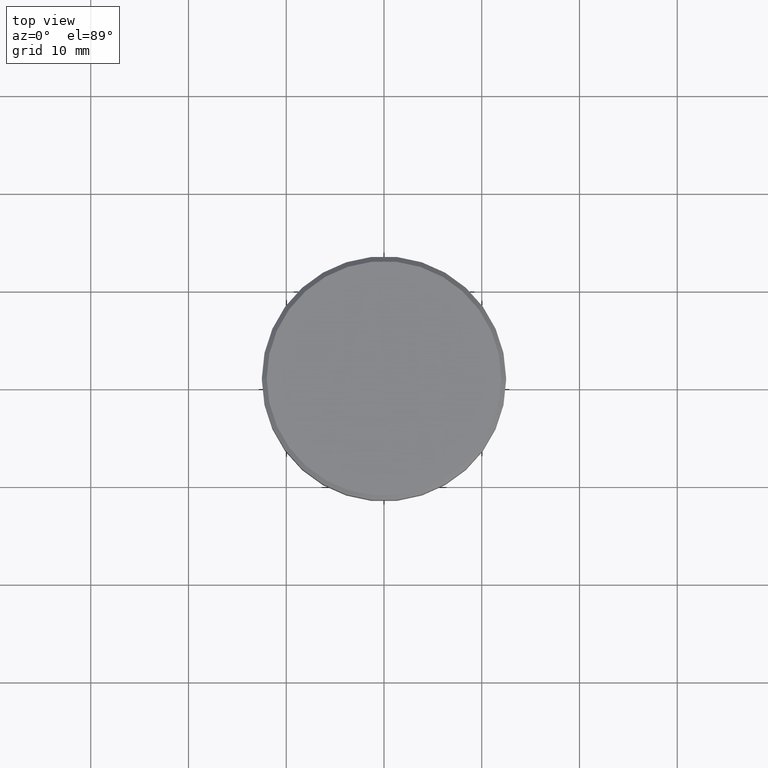
[diagram: clean part render]
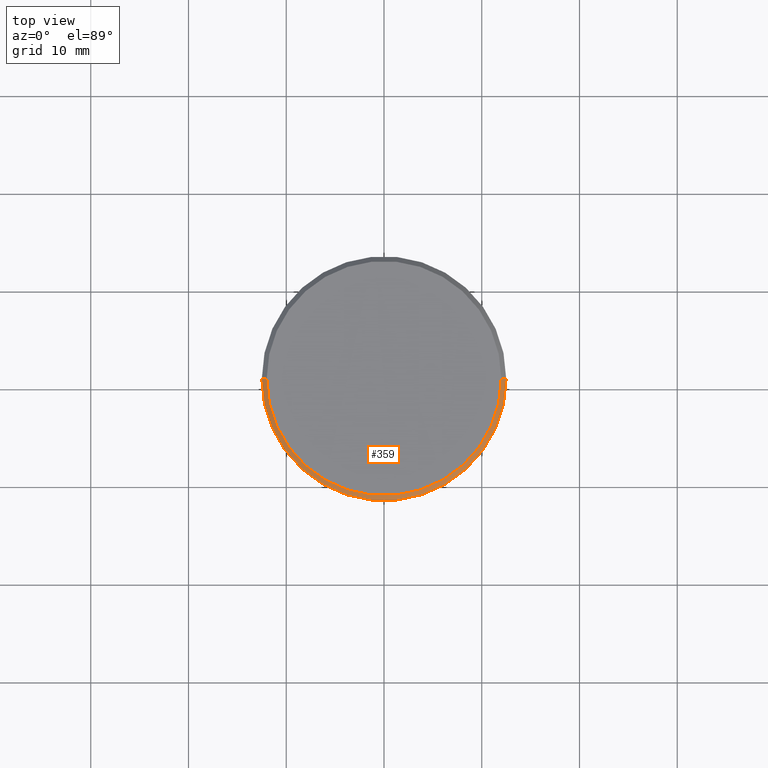
[diagram: same view with one face highlighted and labeled with its STEP entity id]
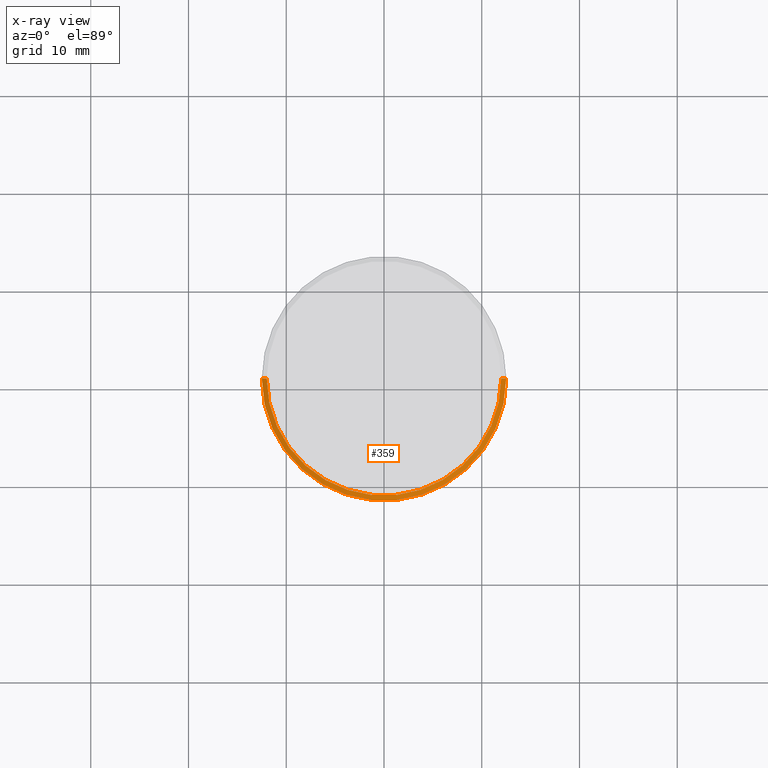
[diagram: x-ray of the same camera — body ghosted, the highlighted face saturated]
A machine part, top view. The second image highlights one B-rep face of the part: STEP entity #359.
The next image is the same camera in x-ray: the body ghosted, the highlighted face saturated — about 0% of this face is hidden behind the body in this view.
In plain terms, the highlighted conical surface has half-angle 45 deg.
Its self-contained STEP definition (entity closure, byte-faithful):
#4 = ORIENTED_EDGE ( 'NONE', *, *, #421, .F. ) ;
#16 = DIRECTION ( 'NONE',  ( 0.7071067811865414665, 8.659560562354858902E-17, -0.7071067811865536790 ) ) ;
#67 = EDGE_LOOP ( 'NONE', ( #4, #787, #920, #491 ) ) ;
#68 = DIRECTION ( 'NONE',  ( -0.000000000000000000, -0.000000000000000000, 1.000000000000000000 ) ) ;
#102 = CARTESIAN_POINT ( 'NONE',  ( 12.00000000000001776, 1.469576158976825919E-15, 0.000000000000000000 ) ) ;
#110 = CARTESIAN_POINT ( 'NONE',  ( -12.00000000000001776, 0.000000000000000000, 0.000000000000000000 ) ) ;
#167 = DIRECTION ( 'NONE',  ( 0.000000000000000000, 0.000000000000000000, -1.000000000000000000 ) ) ;
#170 = CARTESIAN_POINT ( 'NONE',  ( 0.000000000000000000, 0.000000000000000000, 0.000000000000000000 ) ) ;
#192 = CARTESIAN_POINT ( 'NONE',  ( 12.50000000000000000, 0.000000000000000000, -0.4999999999999917843 ) ) ;
#196 = CONICAL_SURFACE ( 'NONE', #197, 12.00000000000001776, 0.7853981633974396193 ) ;
#197 = AXIS2_PLACEMENT_3D ( 'NONE', #170, #1072, #636 ) ;
#215 = VECTOR ( 'NONE', #1183, 1000.000000000000000 ) ;
#326 = EDGE_CURVE ( 'NONE', #423, #488, #744, .T. ) ;
#334 = VERTEX_POINT ( 'NONE', #446 ) ;
#354 = AXIS2_PLACEMENT_3D ( 'NONE', #452, #167, #1068 ) ;
#359 = ADVANCED_FACE ( 'NONE', ( #1086 ), #196, .T. ) ;
#389 = AXIS2_PLACEMENT_3D ( 'NONE', #800, #68, #435 ) ;
#421 = EDGE_CURVE ( 'NONE', #334, #423, #846, .T. ) ;
#423 = VERTEX_POINT ( 'NONE', #192 ) ;
#435 = DIRECTION ( 'NONE',  ( 1.000000000000000000, 0.000000000000000000, 0.000000000000000000 ) ) ;
#446 = CARTESIAN_POINT ( 'NONE',  ( 12.00000000000001776, 1.500192328955508720E-15, 0.000000000000000000 ) ) ;
#449 = EDGE_CURVE ( 'NONE', #953, #488, #842, .T. ) ;
#452 = CARTESIAN_POINT ( 'NONE',  ( 0.000000000000000000, 0.000000000000000000, -0.4999999999999917843 ) ) ;
#488 = VERTEX_POINT ( 'NONE', #1020 ) ;
#491 = ORIENTED_EDGE ( 'NONE', *, *, #326, .F. ) ;
#636 = DIRECTION ( 'NONE',  ( -1.000000000000000000, 0.000000000000000000, 0.000000000000000000 ) ) ;
#744 = CIRCLE ( 'NONE', #354, 12.50000000000000000 ) ;
#752 = EDGE_CURVE ( 'NONE', #953, #334, #1156, .T. ) ;
#787 = ORIENTED_EDGE ( 'NONE', *, *, #752, .F. ) ;
#800 = CARTESIAN_POINT ( 'NONE',  ( 0.000000000000000000, 0.000000000000000000, 0.000000000000000000 ) ) ;
#842 = LINE ( 'NONE', #1099, #215 ) ;
#846 = LINE ( 'NONE', #102, #964 ) ;
#920 = ORIENTED_EDGE ( 'NONE', *, *, #449, .T. ) ;
#953 = VERTEX_POINT ( 'NONE', #110 ) ;
#964 = VECTOR ( 'NONE', #16, 1000.000000000000000 ) ;
#1020 = CARTESIAN_POINT ( 'NONE',  ( -12.50000000000000000, 1.530808498934191521E-15, -0.4999999999999917843 ) ) ;
#1068 = DIRECTION ( 'NONE',  ( 1.000000000000000000, 0.000000000000000000, 0.000000000000000000 ) ) ;
#1072 = DIRECTION ( 'NONE',  ( 0.000000000000000000, 0.000000000000000000, -1.000000000000000000 ) ) ;
#1086 = FACE_OUTER_BOUND ( 'NONE', #67, .T. ) ;
#1099 = CARTESIAN_POINT ( 'NONE',  ( -12.00000000000001776, 0.000000000000000000, 0.000000000000000000 ) ) ;
#1156 = CIRCLE ( 'NONE', #389, 12.00000000000001776 ) ;
#1183 = DIRECTION ( 'NONE',  ( -0.7071067811865414665, 0.000000000000000000, -0.7071067811865536790 ) ) ;